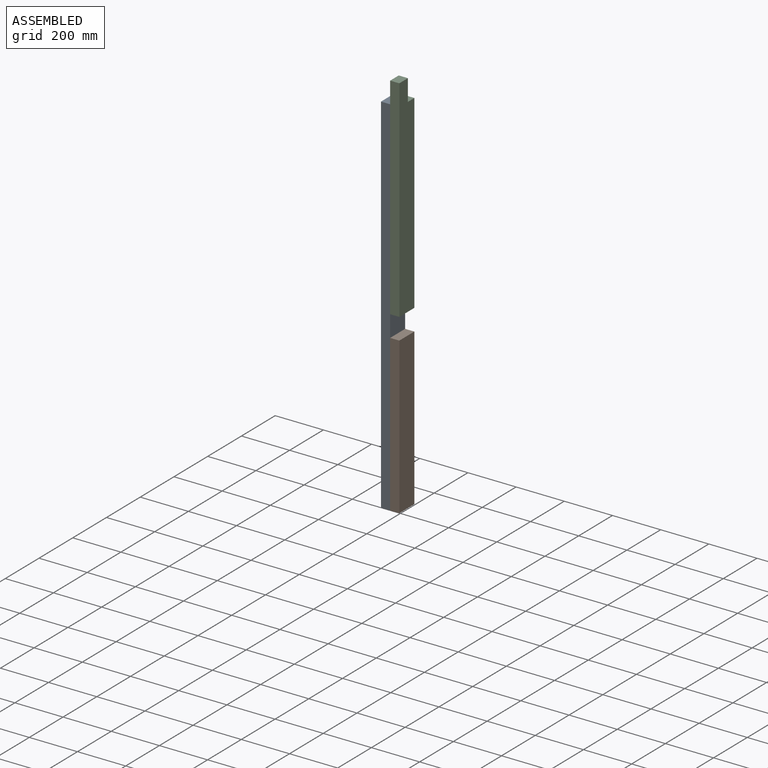
[diagram: assembled view]
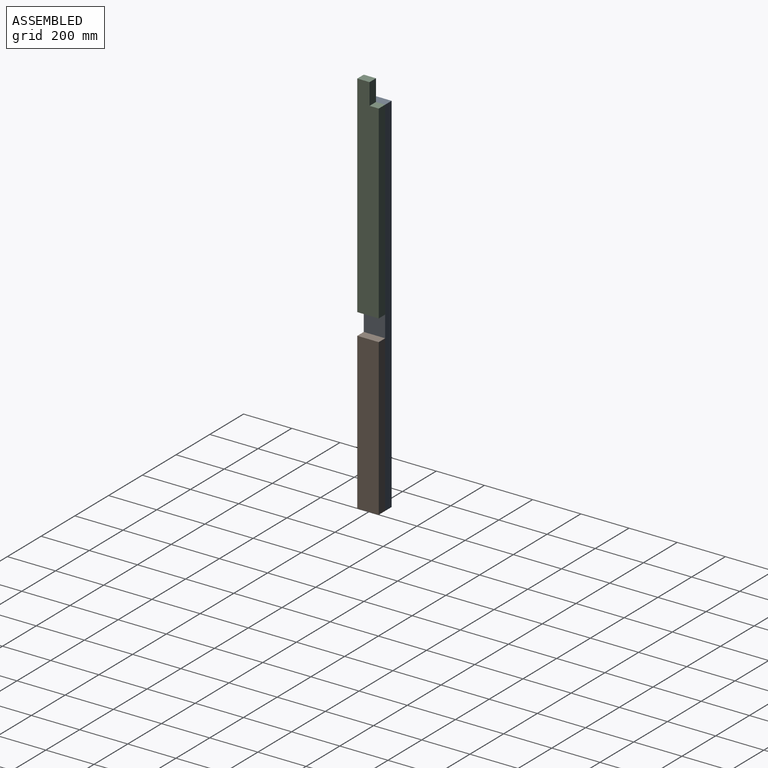
[diagram: assembled view, second angle]
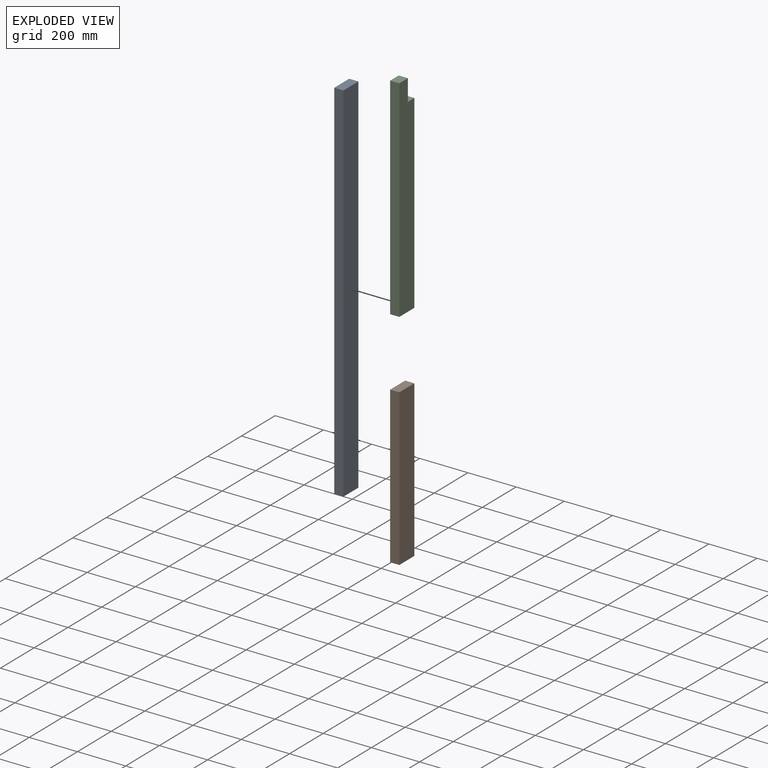
[diagram: exploded view]
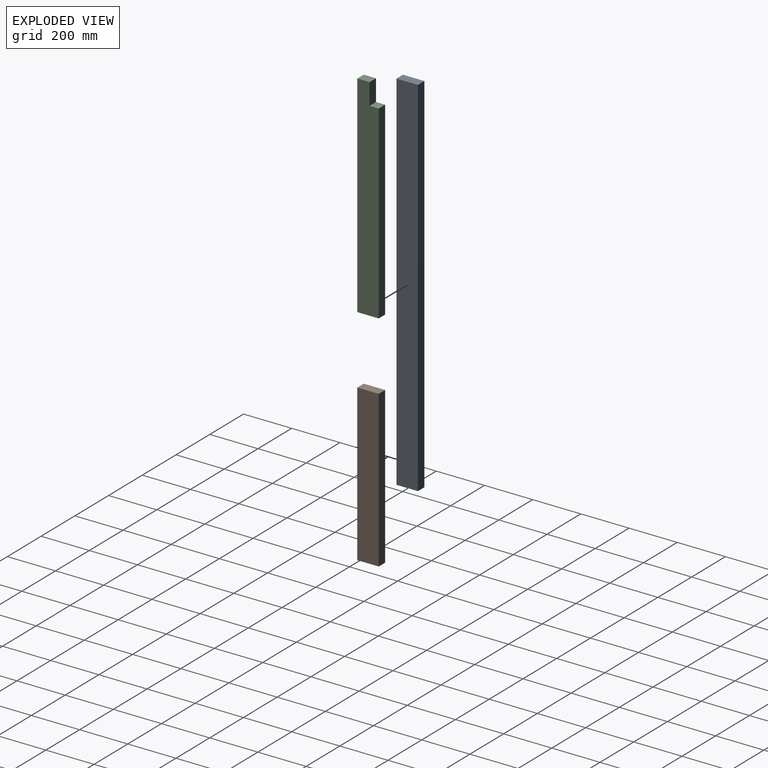
[diagram: exploded view, second angle]
ASSEMBLY  parts=3 mates=2
PART A: 6 faces, bbox 38.1x88.9x1524 mm
  f0: plane 1524x38.1mm, normal (0,-1,0), area 58064.4mm2, adj f1,f3,f4,f5
  f1: plane 88.9x38.1mm, normal (0,0,-1), area 3387.1mm2, adj f0,f2,f4,f5
  f2: plane 1524x38.1mm, normal (0,1,0), area 58064.4mm2, adj f1,f3,f4,f5
  f3: plane 88.9x38.1mm, normal (0,0,1), area 3387.1mm2, adj f0,f2,f4,f5
  f4: plane 1524x88.9mm, normal (-1,0,0), area 135483.6mm2, adj f0,f1,f2,f3
  f5: plane 1524x88.9mm, normal (1,0,0), area 135483.6mm2, adj f0,f1,f2,f3
PART B: 6 faces, bbox 38.1x88.9x647.7 mm
  f0: plane 647.7x38.1mm, normal (0,-1,0), area 24677.4mm2, adj f1,f3,f4,f5
  f1: plane 88.9x38.1mm, normal (0,0,-1), area 3387.1mm2, adj f0,f2,f4,f5
  f2: plane 647.7x38.1mm, normal (0,1,0), area 24677.4mm2, adj f1,f3,f4,f5
  f3: plane 88.9x38.1mm, normal (0,0,1), area 3387.1mm2, adj f0,f2,f4,f5
  f4: plane 647.7x88.9mm, normal (1,0,0), area 57580.5mm2, adj f0,f1,f2,f3
  f5: plane 647.7x88.9mm, normal (-1,0,0), area 57580.5mm2, adj f0,f1,f2,f3
PART C: 8 faces, bbox 38.1x88.9x876.3 mm
  f0: plane 50.8x38.1mm, normal (0,0,1), area 1935.5mm2, adj f1,f5,f6,f7
  f1: plane 88.9x38.1mm, normal (0,-1,0), area 3387.1mm2, adj f0,f2,f6,f7
  f2: plane 38.1x38.1mm, normal (0,0,1), area 1451.6mm2, adj f1,f3,f6,f7
  f3: plane 787.4x38.1mm, normal (0,-1,0), area 29999.9mm2, adj f2,f4,f6,f7
  f4: plane 88.9x38.1mm, normal (0,0,-1), area 3387.1mm2, adj f3,f5,f6,f7
  f5: plane 876.3x38.1mm, normal (0,1,0), area 33387mm2, adj f0,f4,f6,f7
  f6: plane 876.3x88.9mm, normal (1,0,0), area 74516mm2, adj f0,f1,f2,f3,f4,f5
  f7: plane 876.3x88.9mm, normal (-1,0,0), area 74516mm2, adj f0,f1,f2,f3,f4,f5
PLACE A t=(505.66,144.5,311.54)mm
PLACE B t=(505.66,144.5,311.54)mm
PLACE C rot(axis=(0,0,1),180deg) t=(-2301.04,-300,311.54)mm
MATE fastened A.f1 <-> B.f1  axis (0,0,-1) through (-916.74,-77.75,336.94)mm
MATE fastened C.f6 <-> A.f5  axis (-1,0,0) through (-916.74,-33.3,1860.94)mm
